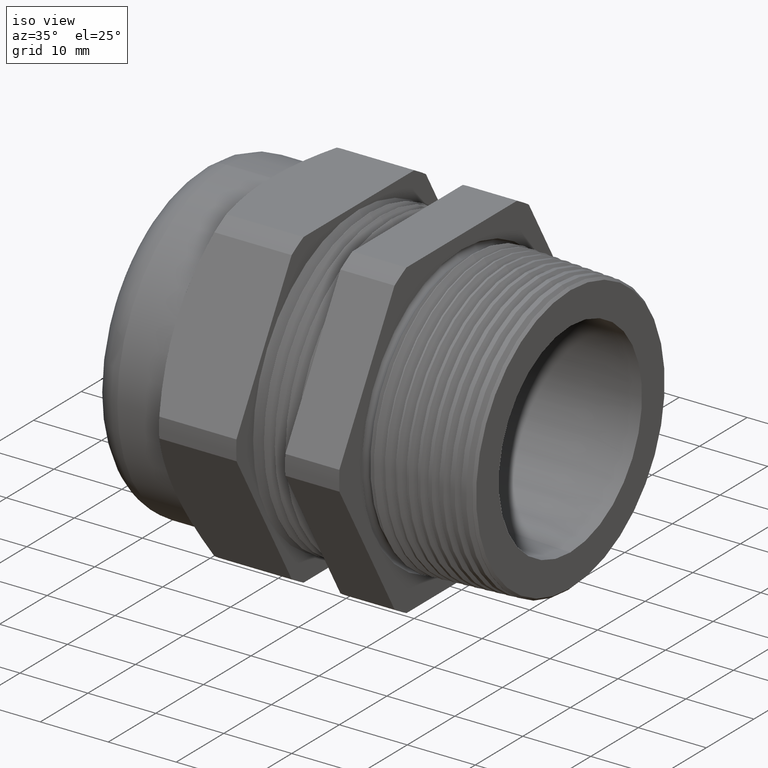
[diagram: clean part render]
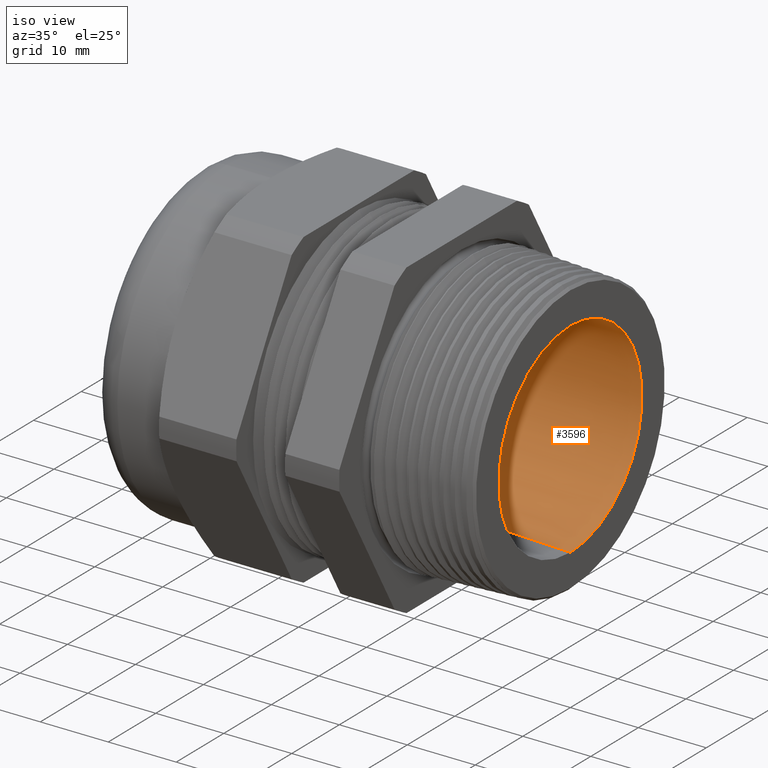
[diagram: same view with one face highlighted and labeled with its STEP entity id]
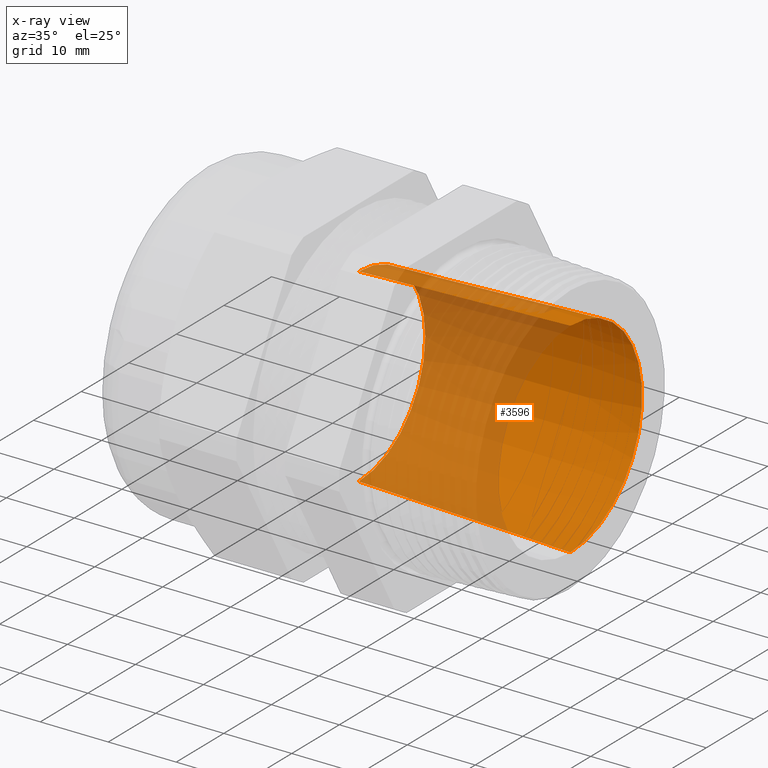
[diagram: x-ray of the same camera — body ghosted, the highlighted face saturated]
A machine part, iso view. The second image highlights one B-rep face of the part: STEP entity #3596.
The next image is the same camera in x-ray: the body ghosted, the highlighted face saturated — about 51% of this face is hidden behind the body in this view.
In plain terms, the highlighted conical surface has half-angle 2 deg.
Its self-contained STEP definition (entity closure, byte-faithful):
#153 = EDGE_CURVE ( 'NONE', #3850, #3848, #1045, .T. ) ;
#154 = ORIENTED_EDGE ( 'NONE', *, *, #3926, .T. ) ;
#155 = ORIENTED_EDGE ( 'NONE', *, *, #3615, .F. ) ;
#1036 = DIRECTION ( 'NONE',  ( 0.0000000000000000000, 0.0000000000000000000, 1.000000000000000000 ) ) ;
#1037 = DIRECTION ( 'NONE',  ( -1.000000000000000000, 0.0000000000000000000, 0.0000000000000000000 ) ) ;
#1038 = CARTESIAN_POINT ( 'NONE',  ( -0.5962500000000000600, 0.0000000000000000000, 0.0000000000000000000 ) ) ;
#1039 = AXIS2_PLACEMENT_3D ( 'NONE', #1038, #1037, #1036 ) ;
#1045 = CIRCLE ( 'NONE', #1039, 0.5500000000000000400 ) ;
#2468 = CARTESIAN_POINT ( 'NONE',  ( 0.6299999999999997800, 0.0000000000000000000, 0.0000000000000000000 ) ) ;
#2469 = AXIS2_PLACEMENT_3D ( 'NONE', #2468, #2532, #2531 ) ;
#2470 = CIRCLE ( 'NONE', #2469, 0.5928215935892566800 ) ;
#2489 = DIRECTION ( 'NONE',  ( 0.0000000000000000000, 0.0000000000000000000, -1.000000000000000000 ) ) ;
#2490 = DIRECTION ( 'NONE',  ( 1.000000000000000000, 0.0000000000000000000, 0.0000000000000000000 ) ) ;
#2491 = AXIS2_PLACEMENT_3D ( 'NONE', #2498, #2490, #2489 ) ;
#2493 = CONICAL_SURFACE ( 'NONE', #2491, 0.5500000000000000400, 0.03490658503988732600 ) ;
#2494 = FACE_OUTER_BOUND ( 'NONE', #3645, .T. ) ;
#2498 = CARTESIAN_POINT ( 'NONE',  ( -0.5962500000000000600, 0.0000000000000000000, 0.0000000000000000000 ) ) ;
#2531 = DIRECTION ( 'NONE',  ( 0.0000000000000000000, 0.0000000000000000000, 1.000000000000000000 ) ) ;
#2532 = DIRECTION ( 'NONE',  ( -1.000000000000000000, 0.0000000000000000000, 0.0000000000000000000 ) ) ;
#2929 = CARTESIAN_POINT ( 'NONE',  ( -0.5962500000000000600, 6.997764032927803500E-017, 0.5500000000000000400 ) ) ;
#2930 = CARTESIAN_POINT ( 'NONE',  ( -0.5962500000000000600, 0.0000000000000000000, -0.5500000000000000400 ) ) ;
#3111 = DIRECTION ( 'NONE',  ( 0.9993908270190957600, 0.0000000000000000000, -0.03489949670250170500 ) ) ;
#3112 = VECTOR ( 'NONE', #3111, 39.37007874015748900 ) ;
#3113 = CARTESIAN_POINT ( 'NONE',  ( -0.5962500000000000600, 0.0000000000000000000, -0.5500000000000000400 ) ) ;
#3114 = LINE ( 'NONE', #3113, #3112 ) ;
#3115 = DIRECTION ( 'NONE',  ( 0.9993908270190957600, 4.273955692857231900E-018, 0.03489949670250170500 ) ) ;
#3116 = VECTOR ( 'NONE', #3115, 39.37007874015748900 ) ;
#3117 = CARTESIAN_POINT ( 'NONE',  ( -0.5962500000000000600, 6.735557395310443700E-017, 0.5500000000000000400 ) ) ;
#3118 = LINE ( 'NONE', #3117, #3116 ) ;
#3130 = CARTESIAN_POINT ( 'NONE',  ( 0.6299999999999997800, 7.259970670545161900E-017, 0.5928215935892566800 ) ) ;
#3186 = CARTESIAN_POINT ( 'NONE',  ( 0.6299999999999997800, 0.0000000000000000000, -0.5928215935892566800 ) ) ;
#3596 = ADVANCED_FACE ( 'NONE', ( #2494 ), #2493, .F. ) ;
#3615 = EDGE_CURVE ( 'NONE', #3952, #3995, #2470, .T. ) ;
#3645 = EDGE_LOOP ( 'NONE', ( #3991, #3971, #154, #155 ) ) ;
#3848 = VERTEX_POINT ( 'NONE', #2930 ) ;
#3850 = VERTEX_POINT ( 'NONE', #2929 ) ;
#3923 = EDGE_CURVE ( 'NONE', #3850, #3952, #3118, .T. ) ;
#3926 = EDGE_CURVE ( 'NONE', #3848, #3995, #3114, .T. ) ;
#3952 = VERTEX_POINT ( 'NONE', #3130 ) ;
#3971 = ORIENTED_EDGE ( 'NONE', *, *, #153, .T. ) ;
#3991 = ORIENTED_EDGE ( 'NONE', *, *, #3923, .F. ) ;
#3995 = VERTEX_POINT ( 'NONE', #3186 ) ;